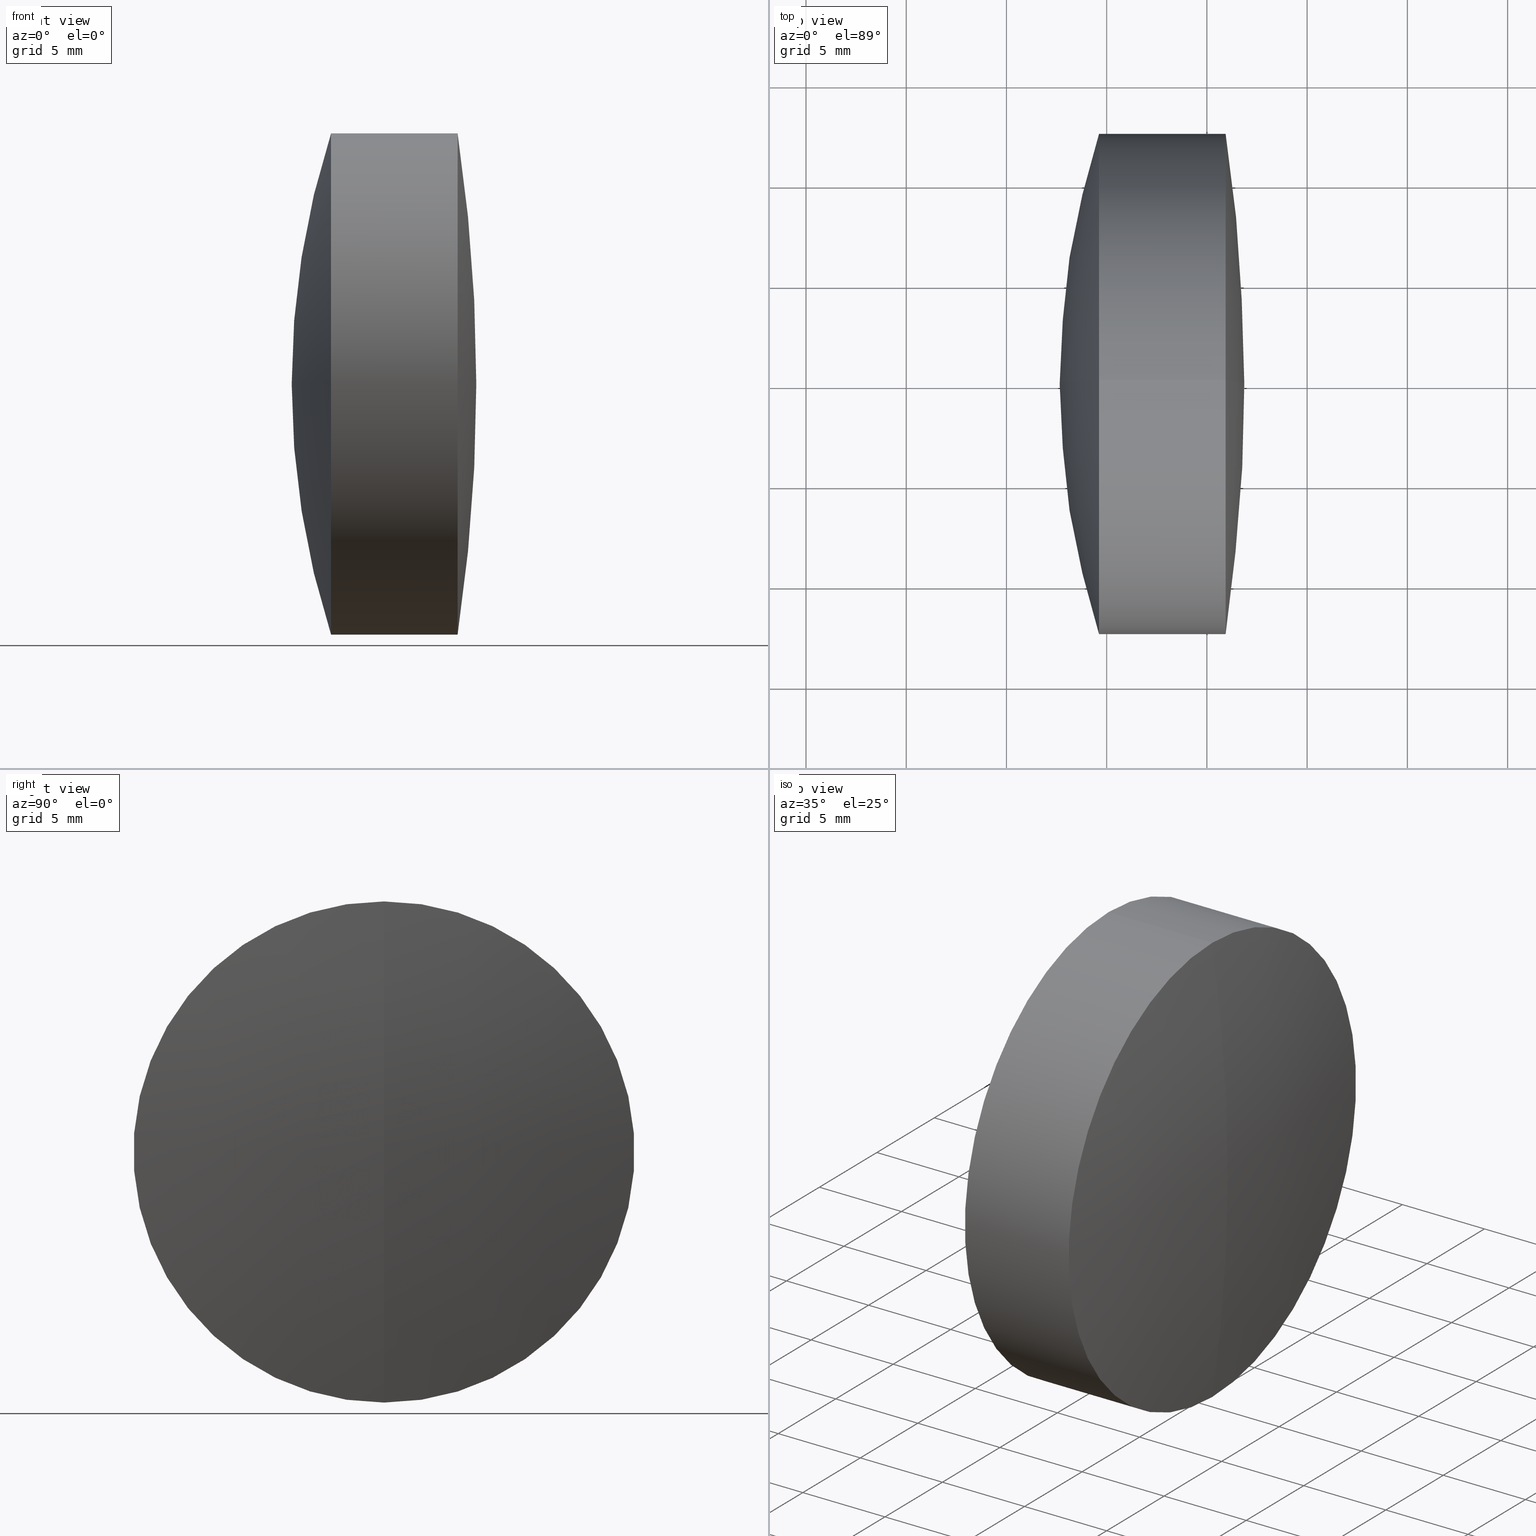
[diagram: canonical four-view strip — front | top / right | iso, engineering-drawing reading convention]
A machine part, canonical four-view strip (front | top / right | iso — engineering-drawing reading convention). The complete STEP part file that produces these views, byte-faithful:
ISO-10303-21;
HEADER;
FILE_DESCRIPTION (( 'STEP AP214' ),
    '1' );
FILE_NAME ('145040.STEP',
    '2019-05-12T02:45:25',
    ( 'user' ),
    ( '΢���й�' ),
    'SwSTEP 2.0',
    'SolidWorks 2016',
    '' );
FILE_SCHEMA (( 'AUTOMOTIVE_DESIGN' ));
ENDSEC;

DATA;
#1 = EDGE_CURVE ( 'NONE', #179, #344, #78, .T. ) ;
#2 = CARTESIAN_POINT ( 'NONE',  ( -37.44033102642524800, 0.0000000000000000000, 0.0000000000000000000 ) ) ;
#3 = ORIENTED_EDGE ( 'NONE', *, *, #323, .F. ) ;
#4 = ORIENTED_EDGE ( 'NONE', *, *, #282, .T. ) ;
#5 = DIRECTION ( 'NONE',  ( 0.0000000000000000000, 0.0000000000000000000, -1.000000000000000000 ) ) ;
#6 = CARTESIAN_POINT ( 'NONE',  ( 41.56290633338549200, 1.530808498934191500E-015, -12.50000000000000000 ) ) ;
#7 = CARTESIAN_POINT ( 'NONE',  ( 45.93383545216690300, 0.0000000000000000000, 0.0000000000000000000 ) ) ;
#8 = AXIS2_PLACEMENT_3D ( 'NONE', #219, #66, #242 ) ;
#9 = DIRECTION ( 'NONE',  ( 0.0000000000000000000, 0.0000000000000000000, 1.000000000000000000 ) ) ;
#10 = DIRECTION ( 'NONE',  ( -0.0000000000000000000, 1.000000000000000000, 1.224646799147353200E-016 ) ) ;
#11 = AXIS2_PLACEMENT_3D ( 'NONE', #87, #14, #38 ) ;
#12 =( NAMED_UNIT ( * ) PLANE_ANGLE_UNIT ( ) SI_UNIT ( $, .RADIAN. ) );
#13 = DIRECTION ( 'NONE',  ( 0.0000000000000000000, -1.000000000000000000, 0.0000000000000000000 ) ) ;
#14 = DIRECTION ( 'NONE',  ( 0.0000000000000000000, 1.000000000000000000, -0.0000000000000000000 ) ) ;
#15 = ORIENTED_EDGE ( 'NONE', *, *, #226, .T. ) ;
#16 = FACE_OUTER_BOUND ( 'NONE', #302, .T. ) ;
#17 = LINE ( 'NONE', #49, #267 ) ;
#18 = ORIENTED_EDGE ( 'NONE', *, *, #72, .T. ) ;
#19 = EDGE_CURVE ( 'NONE', #178, #318, #17, .T. ) ;
#20 = ADVANCED_FACE ( 'NONE', ( #97 ), #197, .T. ) ;
#21 = AXIS2_PLACEMENT_3D ( 'NONE', #67, #122, #124 ) ;
#22 = ORIENTED_EDGE ( 'NONE', *, *, #151, .F. ) ;
#23 = UNCERTAINTY_MEASURE_WITH_UNIT (LENGTH_MEASURE( 1.000000000000000100E-005 ), #169, 'distance_accuracy_value', 'NONE');
#24 = FACE_OUTER_BOUND ( 'NONE', #77, .T. ) ;
#25 = CARTESIAN_POINT ( 'NONE',  ( 14.87966897357473400, 0.0000000000000000000, 1.355252715606880500E-017 ) ) ;
#26 = AXIS2_PLACEMENT_3D ( 'NONE', #196, #321, #166 ) ;
#27 = DIRECTION ( 'NONE',  ( -1.000000000000000000, -0.0000000000000000000, -0.0000000000000000000 ) ) ;
#28 = DIRECTION ( 'NONE',  ( 0.0000000000000000000, 0.0000000000000000000, 1.000000000000000000 ) ) ;
#29 = CYLINDRICAL_SURFACE ( 'NONE', #39, 12.50000000000000000 ) ;
#30 = DIRECTION ( 'NONE',  ( 0.0000000000000000000, 0.0000000000000000000, 1.000000000000000000 ) ) ;
#31 = VERTEX_POINT ( 'NONE', #159 ) ;
#32 = ORIENTED_EDGE ( 'NONE', *, *, #75, .T. ) ;
#33 = DIRECTION ( 'NONE',  ( -1.000000000000000000, -0.0000000000000000000, -0.0000000000000000000 ) ) ;
#34 = FILL_AREA_STYLE ('',( #90 ) ) ;
#35 =( NAMED_UNIT ( * ) PLANE_ANGLE_UNIT ( ) SI_UNIT ( $, .RADIAN. ) );
#36 = CARTESIAN_POINT ( 'NONE',  ( 44.34566897357473900, 0.0000000000000000000, 1.817824656339864800E-015 ) ) ;
#37 = CLOSED_SHELL ( 'NONE', ( #250, #20, #319, #313, #340, #165 ) ) ;
#38 = DIRECTION ( 'NONE',  ( 0.0000000000000000000, 0.0000000000000000000, 1.000000000000000000 ) ) ;
#39 = AXIS2_PLACEMENT_3D ( 'NONE', #174, #137, #144 ) ;
#40 = CIRCLE ( 'NONE', #92, 29.46600000000000500 ) ;
#41 = ADVANCED_FACE ( 'NONE', ( #247 ), #221, .T. ) ;
#42 = MECHANICAL_DESIGN_GEOMETRIC_PRESENTATION_REPRESENTATION (  '', ( #211 ), #279 ) ;
#43 = ORIENTED_EDGE ( 'NONE', *, *, #129, .F. ) ;
#44 = EDGE_LOOP ( 'NONE', ( #254, #155, #100 ) ) ;
#45 = SPHERICAL_SURFACE ( 'NONE', #46, 29.46600000000000800 ) ;
#46 = AXIS2_PLACEMENT_3D ( 'NONE', #258, #62, #167 ) ;
#47 = ORIENTED_EDGE ( 'NONE', *, *, #101, .F. ) ;
#48 = DIRECTION ( 'NONE',  ( -1.000000000000000000, -0.0000000000000000000, -0.0000000000000000000 ) ) ;
#49 = CARTESIAN_POINT ( 'NONE',  ( -0.5519199926577972300, 1.530808498934191900E-015, -12.50000000000000400 ) ) ;
#50 = DIRECTION ( 'NONE',  ( 0.0000000000000000000, -1.224646799147353200E-016, 1.000000000000000000 ) ) ;
#51 = CARTESIAN_POINT ( 'NONE',  ( -0.5519199926577972300, 0.0000000000000000000, 0.0000000000000000000 ) ) ;
#52 = AXIS2_PLACEMENT_3D ( 'NONE', #347, #186, #28 ) ;
#53 = DIRECTION ( 'NONE',  ( 0.0000000000000000000, -1.000000000000000000, 0.0000000000000000000 ) ) ;
#54 = PRODUCT_RELATED_PRODUCT_CATEGORY ( 'part', '', ( #76 ) ) ;
#55 = ORIENTED_EDGE ( 'NONE', *, *, #236, .T. ) ;
#56 = CARTESIAN_POINT ( 'NONE',  ( 41.56290633338548400, 0.0000000000000000000, 0.0000000000000000000 ) ) ;
#57 = CIRCLE ( 'NONE', #259, 29.46600000000000800 ) ;
#58 = AXIS2_PLACEMENT_3D ( 'NONE', #229, #48, #206 ) ;
#59 = CARTESIAN_POINT ( 'NONE',  ( 41.56290633338549200, 0.0000000000000000000, 12.50000000000000000 ) ) ;
#60 = EDGE_LOOP ( 'NONE', ( #173, #277, #228, #3 ) ) ;
#61 = CARTESIAN_POINT ( 'NONE',  ( -0.5519199926577972300, 0.0000000000000000000, 12.50000000000000400 ) ) ;
#62 = DIRECTION ( 'NONE',  ( 0.0000000000000000000, 1.000000000000000000, 0.0000000000000000000 ) ) ;
#63 =( NAMED_UNIT ( * ) SI_UNIT ( $, .STERADIAN. ) SOLID_ANGLE_UNIT ( ) );
#64 = SURFACE_STYLE_USAGE ( .BOTH. , #217 ) ;
#65 = AXIS2_PLACEMENT_3D ( 'NONE', #324, #163, #9 ) ;
#66 = DIRECTION ( 'NONE',  ( 0.0000000000000000000, 0.0000000000000000000, 1.000000000000000000 ) ) ;
#67 = CARTESIAN_POINT ( 'NONE',  ( 41.56290633338549200, 0.0000000000000000000, 0.0000000000000000000 ) ) ;
#68 = EDGE_CURVE ( 'NONE', #182, #308, #69, .T. ) ;
#69 = CIRCLE ( 'NONE', #329, 29.46600000000000500 ) ;
#70 = EDGE_CURVE ( 'NONE', #224, #138, #346, .T. ) ;
#71 = ORIENTED_EDGE ( 'NONE', *, *, #68, .F. ) ;
#72 = EDGE_CURVE ( 'NONE', #344, #224, #256, .T. ) ;
#73 = LINE ( 'NONE', #61, #331 ) ;
#74 = AXIS2_PLACEMENT_3D ( 'NONE', #106, #257, #50 ) ;
#75 = EDGE_CURVE ( 'NONE', #318, #308, #330, .T. ) ;
#76 = PRODUCT ( '145040', '145040', '', ( #94 ) ) ;
#77 = EDGE_LOOP ( 'NONE', ( #145, #237, #95, #303 ) ) ;
#78 = LINE ( 'NONE', #230, #320 ) ;
#79 = FACE_OUTER_BOUND ( 'NONE', #311, .T. ) ;
#80 = FACE_OUTER_BOUND ( 'NONE', #333, .T. ) ;
#81 = FILL_AREA_STYLE_COLOUR ( '', #315 ) ;
#82 = DIRECTION ( 'NONE',  ( -1.000000000000000000, -0.0000000000000000000, -0.0000000000000000000 ) ) ;
#83 = DIRECTION ( 'NONE',  ( 0.0000000000000000000, 0.0000000000000000000, 1.000000000000000000 ) ) ;
#84 = ADVANCED_BREP_SHAPE_REPRESENTATION ( '145040', ( #149, #125, #8 ), #342 ) ;
#85 = DIRECTION ( 'NONE',  ( 0.0000000000000000000, 0.0000000000000000000, -1.000000000000000000 ) ) ;
#86 = FACE_OUTER_BOUND ( 'NONE', #275, .T. ) ;
#87 = CARTESIAN_POINT ( 'NONE',  ( 78.43766897357473100, 0.0000000000000000000, 9.088469244024832500E-017 ) ) ;
#88 = DIRECTION ( 'NONE',  ( -1.000000000000000000, -0.0000000000000000000, -0.0000000000000000000 ) ) ;
#89 =( NAMED_UNIT ( * ) SI_UNIT ( $, .STERADIAN. ) SOLID_ANGLE_UNIT ( ) );
#90 = FILL_AREA_STYLE_COLOUR ( '', #162 ) ;
#91 = APPLICATION_PROTOCOL_DEFINITION ( 'draft international standard', 'automotive_design', 1998, #119 ) ;
#92 = AXIS2_PLACEMENT_3D ( 'NONE', #266, #118, #239 ) ;
#93 = FILL_AREA_STYLE ('',( #81 ) ) ;
#94 = PRODUCT_CONTEXT ( 'NONE', #119, 'mechanical' ) ;
#95 = ORIENTED_EDGE ( 'NONE', *, *, #252, .F. ) ;
#96 = ORIENTED_EDGE ( 'NONE', *, *, #132, .T. ) ;
#97 = FACE_OUTER_BOUND ( 'NONE', #60, .T. ) ;
#98 = FACE_OUTER_BOUND ( 'NONE', #309, .T. ) ;
#99 = EDGE_CURVE ( 'NONE', #283, #179, #123, .T. ) ;
#100 = ORIENTED_EDGE ( 'NONE', *, *, #220, .T. ) ;
#101 = EDGE_CURVE ( 'NONE', #179, #184, #180, .T. ) ;
#102 = DIRECTION ( 'NONE',  ( 0.0000000000000000000, 1.224646799147353200E-016, -1.000000000000000000 ) ) ;
#103 = CYLINDRICAL_SURFACE ( 'NONE', #110, 12.50000000000000400 ) ;
#104 = DIRECTION ( 'NONE',  ( 0.0000000000000000000, 0.0000000000000000000, -1.000000000000000000 ) ) ;
#105 = CARTESIAN_POINT ( 'NONE',  ( 78.43766897357473100, 0.0000000000000000000, 9.088469244024832500E-017 ) ) ;
#106 = CARTESIAN_POINT ( 'NONE',  ( 14.87966897357473400, 0.0000000000000000000, 1.355252715606880500E-017 ) ) ;
#107 = AXIS2_PLACEMENT_3D ( 'NONE', #109, #261, #83 ) ;
#108 = PRESENTATION_STYLE_ASSIGNMENT (( #64 ) ) ;
#109 = CARTESIAN_POINT ( 'NONE',  ( 39.61858186426729100, 0.0000000000000000000, 0.0000000000000000000 ) ) ;
#110 = AXIS2_PLACEMENT_3D ( 'NONE', #115, #292, #192 ) ;
#111 = ORIENTED_EDGE ( 'NONE', *, *, #220, .F. ) ;
#112 = VERTEX_POINT ( 'NONE', #209 ) ;
#113 = DIRECTION ( 'NONE',  ( 0.0000000000000000000, 0.0000000000000000000, 1.000000000000000000 ) ) ;
#114 = DIRECTION ( 'NONE',  ( 0.0000000000000000000, 1.000000000000000000, 0.0000000000000000000 ) ) ;
#115 = CARTESIAN_POINT ( 'NONE',  ( -0.5519199926577972300, 0.0000000000000000000, 0.0000000000000000000 ) ) ;
#116 = DIRECTION ( 'NONE',  ( -1.000000000000000000, -0.0000000000000000000, -0.0000000000000000000 ) ) ;
#117 = SHAPE_DEFINITION_REPRESENTATION ( #205, #84 ) ;
#118 = DIRECTION ( 'NONE',  ( -0.0000000000000000000, 1.000000000000000000, 1.224646799147353200E-016 ) ) ;
#119 = APPLICATION_CONTEXT ( 'automotive_design' ) ;
#120 = DIRECTION ( 'NONE',  ( -1.000000000000000000, -0.0000000000000000000, -0.0000000000000000000 ) ) ;
#121 = APPLICATION_PROTOCOL_DEFINITION ( 'draft international standard', 'automotive_design', 1998, #270 ) ;
#122 = DIRECTION ( 'NONE',  ( -1.000000000000000000, -0.0000000000000000000, -0.0000000000000000000 ) ) ;
#123 = CIRCLE ( 'NONE', #74, 29.46600000000000800 ) ;
#124 = DIRECTION ( 'NONE',  ( 0.0000000000000000000, 0.0000000000000000000, 1.000000000000000000 ) ) ;
#125 = MANIFOLD_SOLID_BREP ( '��ת3', #37 ) ;
#126 = ORIENTED_EDGE ( 'NONE', *, *, #68, .T. ) ;
#127 = CIRCLE ( 'NONE', #245, 12.49999999999999800 ) ;
#128 = EDGE_LOOP ( 'NONE', ( #160, #15, #22 ) ) ;
#129 = EDGE_CURVE ( 'NONE', #182, #318, #40, .T. ) ;
#130 = SPHERICAL_SURFACE ( 'NONE', #65, 29.46600000000000500 ) ;
#131 = ORIENTED_EDGE ( 'NONE', *, *, #19, .F. ) ;
#132 = EDGE_CURVE ( 'NONE', #112, #178, #153, .T. ) ;
#133 = CIRCLE ( 'NONE', #11, 40.78199999999999600 ) ;
#134 = CARTESIAN_POINT ( 'NONE',  ( 78.43766897357473100, 0.0000000000000000000, 9.088469244024832500E-017 ) ) ;
#135 = AXIS2_PLACEMENT_3D ( 'NONE', #198, #116, #274 ) ;
#136 = PRESENTATION_STYLE_ASSIGNMENT (( #291 ) ) ;
#137 = DIRECTION ( 'NONE',  ( -1.000000000000000000, -0.0000000000000000000, -0.0000000000000000000 ) ) ;
#138 = VERTEX_POINT ( 'NONE', #233 ) ;
#139 = CIRCLE ( 'NONE', #21, 12.50000000000000000 ) ;
#140 =( LENGTH_UNIT ( ) NAMED_UNIT ( * ) SI_UNIT ( .MILLI., .METRE. ) );
#141 = FILL_AREA_STYLE_COLOUR ( '', #268 ) ;
#142 = SURFACE_SIDE_STYLE ('',( #314 ) ) ;
#143 = DIRECTION ( 'NONE',  ( 0.0000000000000000000, 0.0000000000000000000, 1.000000000000000000 ) ) ;
#144 = DIRECTION ( 'NONE',  ( 0.0000000000000000000, 0.0000000000000000000, 1.000000000000000000 ) ) ;
#145 = ORIENTED_EDGE ( 'NONE', *, *, #199, .T. ) ;
#146 = ORIENTED_EDGE ( 'NONE', *, *, #1, .F. ) ;
#147 = PRODUCT_DEFINITION_FORMATION_WITH_SPECIFIED_SOURCE ( '�κ�', '', #76, .NOT_KNOWN. ) ;
#148 = ORIENTED_EDGE ( 'NONE', *, *, #323, .T. ) ;
#149 = MANIFOLD_SOLID_BREP ( '��ת1', #150 ) ;
#150 = CLOSED_SHELL ( 'NONE', ( #157, #260, #285, #41, #246, #278 ) ) ;
#151 = EDGE_CURVE ( 'NONE', #178, #31, #127, .T. ) ;
#152 = CIRCLE ( 'NONE', #107, 12.50000000000000000 ) ;
#153 = CIRCLE ( 'NONE', #222, 84.30599999999999700 ) ;
#154 = PRESENTATION_STYLE_ASSIGNMENT (( #327 ) ) ;
#155 = ORIENTED_EDGE ( 'NONE', *, *, #252, .T. ) ;
#156 = ORIENTED_EDGE ( 'NONE', *, *, #210, .F. ) ;
#157 = ADVANCED_FACE ( 'NONE', ( #190 ), #45, .T. ) ;
#158 = AXIS2_PLACEMENT_3D ( 'NONE', #2, #188, #143 ) ;
#159 = CARTESIAN_POINT ( 'NONE',  ( 45.93383545216690300, 0.0000000000000000000, 12.49999999999999800 ) ) ;
#160 = ORIENTED_EDGE ( 'NONE', *, *, #132, .F. ) ;
#161 = PRESENTATION_LAYER_ASSIGNMENT (  '', '', ( #181 ) ) ;
#162 = COLOUR_RGB ( '',1.000000000000000000, 1.000000000000000000, 1.000000000000000000 ) ;
#163 = DIRECTION ( 'NONE',  ( 0.0000000000000000000, 1.000000000000000000, 0.0000000000000000000 ) ) ;
#164 = CARTESIAN_POINT ( 'NONE',  ( 45.93383545216690300, 1.530808498934191700E-015, -12.49999999999999800 ) ) ;
#165 = ADVANCED_FACE ( 'NONE', ( #251 ), #335, .T. ) ;
#166 = DIRECTION ( 'NONE',  ( 0.0000000000000000000, 0.0000000000000000000, 1.000000000000000000 ) ) ;
#167 = DIRECTION ( 'NONE',  ( 0.0000000000000000000, 0.0000000000000000000, 1.000000000000000000 ) ) ;
#168 = ORIENTED_EDGE ( 'NONE', *, *, #70, .T. ) ;
#169 =( LENGTH_UNIT ( ) NAMED_UNIT ( * ) SI_UNIT ( .MILLI., .METRE. ) );
#170 = SURFACE_SIDE_STYLE ('',( #300 ) ) ;
#171 =( NAMED_UNIT ( * ) SI_UNIT ( $, .STERADIAN. ) SOLID_ANGLE_UNIT ( ) );
#172 =( LENGTH_UNIT ( ) NAMED_UNIT ( * ) SI_UNIT ( .MILLI., .METRE. ) );
#173 = ORIENTED_EDGE ( 'NONE', *, *, #210, .T. ) ;
#174 = CARTESIAN_POINT ( 'NONE',  ( -9.702612178336682500, 0.0000000000000000000, 0.0000000000000000000 ) ) ;
#175 = DIRECTION ( 'NONE',  ( -1.000000000000000000, -0.0000000000000000000, -0.0000000000000000000 ) ) ;
#176 = SPHERICAL_SURFACE ( 'NONE', #26, 29.46600000000000800 ) ;
#177 = ORIENTED_EDGE ( 'NONE', *, *, #199, .F. ) ;
#178 = VERTEX_POINT ( 'NONE', #164 ) ;
#179 = VERTEX_POINT ( 'NONE', #6 ) ;
#180 = CIRCLE ( 'NONE', #341, 12.50000000000000000 ) ;
#181 = STYLED_ITEM ( 'NONE', ( #154 ), #84 ) ;
#182 = VERTEX_POINT ( 'NONE', #36 ) ;
#183 = DIRECTION ( 'NONE',  ( 0.0000000000000000000, -1.000000000000000000, 0.0000000000000000000 ) ) ;
#184 = VERTEX_POINT ( 'NONE', #59 ) ;
#185 = AXIS2_PLACEMENT_3D ( 'NONE', #322, #114, #325 ) ;
#186 = DIRECTION ( 'NONE',  ( -1.000000000000000000, -0.0000000000000000000, -0.0000000000000000000 ) ) ;
#187 = SURFACE_STYLE_FILL_AREA ( #93 ) ;
#188 = DIRECTION ( 'NONE',  ( 0.0000000000000000000, 1.000000000000000000, 0.0000000000000000000 ) ) ;
#189 = CARTESIAN_POINT ( 'NONE',  ( 78.43766897357473100, 0.0000000000000000000, 9.088469244024832500E-017 ) ) ;
#190 = FACE_OUTER_BOUND ( 'NONE', #289, .T. ) ;
#191 = FACE_OUTER_BOUND ( 'NONE', #334, .T. ) ;
#192 = DIRECTION ( 'NONE',  ( 0.0000000000000000000, 0.0000000000000000000, 1.000000000000000000 ) ) ;
#193 = DIRECTION ( 'NONE',  ( 0.0000000000000000000, -1.224646799147353000E-016, 1.000000000000000000 ) ) ;
#194 =( LENGTH_UNIT ( ) NAMED_UNIT ( * ) SI_UNIT ( .MILLI., .METRE. ) );
#195 =( NAMED_UNIT ( * ) SI_UNIT ( $, .STERADIAN. ) SOLID_ANGLE_UNIT ( ) );
#196 = CARTESIAN_POINT ( 'NONE',  ( 14.87966897357473400, 0.0000000000000000000, 1.355252715606880500E-017 ) ) ;
#197 = CYLINDRICAL_SURFACE ( 'NONE', #297, 12.50000000000000400 ) ;
#198 = CARTESIAN_POINT ( 'NONE',  ( -9.702612178336682500, 0.0000000000000000000, 0.0000000000000000000 ) ) ;
#199 = EDGE_CURVE ( 'NONE', #184, #179, #139, .T. ) ;
#200 = PRODUCT_DEFINITION_CONTEXT ( 'detailed design', #270, 'design' ) ;
#201 = ORIENTED_EDGE ( 'NONE', *, *, #99, .F. ) ;
#202 =( GEOMETRIC_REPRESENTATION_CONTEXT ( 3 ) GLOBAL_UNCERTAINTY_ASSIGNED_CONTEXT ( ( #231 ) ) GLOBAL_UNIT_ASSIGNED_CONTEXT ( ( #140, #213, #89 ) ) REPRESENTATION_CONTEXT ( 'NONE', 'WORKASPACE' ) );
#203 = SPHERICAL_SURFACE ( 'NONE', #158, 84.30599999999999700 ) ;
#204 = AXIS2_PLACEMENT_3D ( 'NONE', #105, #345, #104 ) ;
#205 = PRODUCT_DEFINITION_SHAPE ( 'NONE', 'NONE',  #307 ) ;
#206 = DIRECTION ( 'NONE',  ( 0.0000000000000000000, 0.0000000000000000000, 1.000000000000000000 ) ) ;
#207 = DIRECTION ( 'NONE',  ( -1.000000000000000000, -0.0000000000000000000, -0.0000000000000000000 ) ) ;
#208 = LINE ( 'NONE', #265, #304 ) ;
#209 = CARTESIAN_POINT ( 'NONE',  ( 46.86566897357474200, 0.0000000000000000000, 5.162253652445837200E-015 ) ) ;
#210 = EDGE_CURVE ( 'NONE', #31, #178, #262, .T. ) ;
#211 = STYLED_ITEM ( 'NONE', ( #108 ), #125 ) ;
#212 = DIRECTION ( 'NONE',  ( -1.000000000000000000, -0.0000000000000000000, -0.0000000000000000000 ) ) ;
#213 =( NAMED_UNIT ( * ) PLANE_ANGLE_UNIT ( ) SI_UNIT ( $, .RADIAN. ) );
#214 = DIRECTION ( 'NONE',  ( -1.000000000000000000, -0.0000000000000000000, -0.0000000000000000000 ) ) ;
#215 = CARTESIAN_POINT ( 'NONE',  ( -37.44033102642524800, 0.0000000000000000000, 0.0000000000000000000 ) ) ;
#216 =( NAMED_UNIT ( * ) PLANE_ANGLE_UNIT ( ) SI_UNIT ( $, .RADIAN. ) );
#217 = SURFACE_SIDE_STYLE ('',( #187 ) ) ;
#218 = ORIENTED_EDGE ( 'NONE', *, *, #151, .T. ) ;
#219 = CARTESIAN_POINT ( 'NONE',  ( 0.0000000000000000000, 0.0000000000000000000, 0.0000000000000000000 ) ) ;
#220 = EDGE_CURVE ( 'NONE', #344, #138, #133, .T. ) ;
#221 = SPHERICAL_SURFACE ( 'NONE', #204, 40.78199999999999600 ) ;
#222 = AXIS2_PLACEMENT_3D ( 'NONE', #215, #10, #193 ) ;
#223 = CIRCLE ( 'NONE', #253, 12.50000000000000900 ) ;
#224 = VERTEX_POINT ( 'NONE', #272 ) ;
#225 = ORIENTED_EDGE ( 'NONE', *, *, #72, .F. ) ;
#226 = EDGE_CURVE ( 'NONE', #112, #31, #276, .T. ) ;
#227 = AXIS2_PLACEMENT_3D ( 'NONE', #238, #234, #113 ) ;
#228 = ORIENTED_EDGE ( 'NONE', *, *, #282, .F. ) ;
#229 = CARTESIAN_POINT ( 'NONE',  ( 39.61858186426729100, 0.0000000000000000000, 0.0000000000000000000 ) ) ;
#230 = CARTESIAN_POINT ( 'NONE',  ( -9.702612178336682500, 1.530808498934191500E-015, -12.50000000000000000 ) ) ;
#231 = UNCERTAINTY_MEASURE_WITH_UNIT (LENGTH_MEASURE( 1.000000000000000100E-005 ), #140, 'distance_accuracy_value', 'NONE');
#232 = SPHERICAL_SURFACE ( 'NONE', #271, 40.78199999999999600 ) ;
#233 = CARTESIAN_POINT ( 'NONE',  ( 37.65566897357474100, 0.0000000000000000000, -2.406292595701119300E-015 ) ) ;
#234 = DIRECTION ( 'NONE',  ( 0.0000000000000000000, 1.000000000000000000, 0.0000000000000000000 ) ) ;
#235 = ORIENTED_EDGE ( 'NONE', *, *, #288, .T. ) ;
#236 = EDGE_CURVE ( 'NONE', #283, #184, #57, .T. ) ;
#237 = ORIENTED_EDGE ( 'NONE', *, *, #1, .T. ) ;
#238 = CARTESIAN_POINT ( 'NONE',  ( 14.87966897357473400, 0.0000000000000000000, 1.355252715606880500E-017 ) ) ;
#239 = DIRECTION ( 'NONE',  ( 0.0000000000000000000, -1.224646799147353500E-016, 1.000000000000000000 ) ) ;
#240 = PRESENTATION_LAYER_ASSIGNMENT (  '', '', ( #306 ) ) ;
#241 = DIRECTION ( 'NONE',  ( 0.0000000000000000000, 0.0000000000000000000, 1.000000000000000000 ) ) ;
#242 = DIRECTION ( 'NONE',  ( 1.000000000000000000, 0.0000000000000000000, 0.0000000000000000000 ) ) ;
#243 = CARTESIAN_POINT ( 'NONE',  ( -37.44033102642524800, 0.0000000000000000000, 0.0000000000000000000 ) ) ;
#244 = ORIENTED_EDGE ( 'NONE', *, *, #99, .T. ) ;
#245 = AXIS2_PLACEMENT_3D ( 'NONE', #7, #33, #263 ) ;
#246 = ADVANCED_FACE ( 'NONE', ( #16 ), #286, .T. ) ;
#247 = FACE_OUTER_BOUND ( 'NONE', #44, .T. ) ;
#248 = MECHANICAL_DESIGN_GEOMETRIC_PRESENTATION_REPRESENTATION (  '', ( #181 ), #284 ) ;
#249 = ORIENTED_EDGE ( 'NONE', *, *, #129, .T. ) ;
#250 = ADVANCED_FACE ( 'NONE', ( #86 ), #203, .T. ) ;
#251 = FACE_OUTER_BOUND ( 'NONE', #128, .T. ) ;
#252 = EDGE_CURVE ( 'NONE', #224, #344, #152, .T. ) ;
#253 = AXIS2_PLACEMENT_3D ( 'NONE', #56, #212, #30 ) ;
#254 = ORIENTED_EDGE ( 'NONE', *, *, #70, .F. ) ;
#255 = DIRECTION ( 'NONE',  ( 0.0000000000000000000, 0.0000000000000000000, 1.000000000000000000 ) ) ;
#256 = CIRCLE ( 'NONE', #58, 12.50000000000000000 ) ;
#257 = DIRECTION ( 'NONE',  ( -0.0000000000000000000, 1.000000000000000000, 1.224646799147353200E-016 ) ) ;
#258 = CARTESIAN_POINT ( 'NONE',  ( 14.87966897357473400, 0.0000000000000000000, 1.355252715606880500E-017 ) ) ;
#259 = AXIS2_PLACEMENT_3D ( 'NONE', #328, #13, #296 ) ;
#260 = ADVANCED_FACE ( 'NONE', ( #24 ), #29, .T. ) ;
#261 = DIRECTION ( 'NONE',  ( -1.000000000000000000, -0.0000000000000000000, -0.0000000000000000000 ) ) ;
#262 = CIRCLE ( 'NONE', #312, 12.49999999999999800 ) ;
#263 = DIRECTION ( 'NONE',  ( 0.0000000000000000000, 0.0000000000000000000, 1.000000000000000000 ) ) ;
#264 = MECHANICAL_DESIGN_GEOMETRIC_PRESENTATION_REPRESENTATION (  '', ( #306 ), #202 ) ;
#265 = CARTESIAN_POINT ( 'NONE',  ( -9.702612178336682500, 0.0000000000000000000, 12.50000000000000000 ) ) ;
#266 = CARTESIAN_POINT ( 'NONE',  ( 14.87966897357473400, 0.0000000000000000000, 1.355252715606880500E-017 ) ) ;
#267 = VECTOR ( 'NONE', #207, 1000.000000000000000 ) ;
#268 = COLOUR_RGB ( '',1.000000000000000000, 1.000000000000000000, 1.000000000000000000 ) ;
#269 = CARTESIAN_POINT ( 'NONE',  ( 41.56290633338549200, 0.0000000000000000000, 0.0000000000000000000 ) ) ;
#270 = APPLICATION_CONTEXT ( 'automotive_design' ) ;
#271 = AXIS2_PLACEMENT_3D ( 'NONE', #189, #287, #5 ) ;
#272 = CARTESIAN_POINT ( 'NONE',  ( 39.61858186426729100, -1.530808498934191700E-015, 12.50000000000000200 ) ) ;
#273 = ORIENTED_EDGE ( 'NONE', *, *, #101, .T. ) ;
#274 = DIRECTION ( 'NONE',  ( 0.0000000000000000000, 0.0000000000000000000, 1.000000000000000000 ) ) ;
#275 = EDGE_LOOP ( 'NONE', ( #305, #96, #156 ) ) ;
#276 = CIRCLE ( 'NONE', #293, 84.30599999999999700 ) ;
#277 = ORIENTED_EDGE ( 'NONE', *, *, #19, .T. ) ;
#278 = ADVANCED_FACE ( 'NONE', ( #98 ), #176, .T. ) ;
#279 =( GEOMETRIC_REPRESENTATION_CONTEXT ( 3 ) GLOBAL_UNCERTAINTY_ASSIGNED_CONTEXT ( ( #337 ) ) GLOBAL_UNIT_ASSIGNED_CONTEXT ( ( #194, #35, #171 ) ) REPRESENTATION_CONTEXT ( 'NONE', 'WORKASPACE' ) );
#280 = ORIENTED_EDGE ( 'NONE', *, *, #236, .F. ) ;
#281 = DIRECTION ( 'NONE',  ( 0.0000000000000000000, -1.000000000000000000, -1.224646799147353200E-016 ) ) ;
#282 = EDGE_CURVE ( 'NONE', #308, #318, #223, .T. ) ;
#283 = VERTEX_POINT ( 'NONE', #316 ) ;
#284 =( GEOMETRIC_REPRESENTATION_CONTEXT ( 3 ) GLOBAL_UNCERTAINTY_ASSIGNED_CONTEXT ( ( #298 ) ) GLOBAL_UNIT_ASSIGNED_CONTEXT ( ( #172, #12, #195 ) ) REPRESENTATION_CONTEXT ( 'NONE', 'WORKASPACE' ) );
#285 = ADVANCED_FACE ( 'NONE', ( #79 ), #232, .T. ) ;
#286 = CYLINDRICAL_SURFACE ( 'NONE', #135, 12.50000000000000000 ) ;
#287 = DIRECTION ( 'NONE',  ( -0.0000000000000000000, -1.000000000000000000, -0.0000000000000000000 ) ) ;
#288 = EDGE_CURVE ( 'NONE', #184, #224, #208, .T. ) ;
#289 = EDGE_LOOP ( 'NONE', ( #280, #244, #177 ) ) ;
#290 = CARTESIAN_POINT ( 'NONE',  ( 41.56290633338548400, 0.0000000000000000000, 12.50000000000000900 ) ) ;
#291 = SURFACE_STYLE_USAGE ( .BOTH. , #170 ) ;
#292 = DIRECTION ( 'NONE',  ( -1.000000000000000000, -0.0000000000000000000, -0.0000000000000000000 ) ) ;
#293 = AXIS2_PLACEMENT_3D ( 'NONE', #243, #53, #85 ) ;
#294 = EDGE_LOOP ( 'NONE', ( #43, #126, #4 ) ) ;
#295 = FILL_AREA_STYLE ('',( #141 ) ) ;
#296 = DIRECTION ( 'NONE',  ( 0.0000000000000000000, 0.0000000000000000000, -1.000000000000000000 ) ) ;
#297 = AXIS2_PLACEMENT_3D ( 'NONE', #51, #27, #255 ) ;
#298 = UNCERTAINTY_MEASURE_WITH_UNIT (LENGTH_MEASURE( 1.000000000000000100E-005 ), #172, 'distance_accuracy_value', 'NONE');
#299 = CARTESIAN_POINT ( 'NONE',  ( 45.93383545216690300, 0.0000000000000000000, 0.0000000000000000000 ) ) ;
#300 = SURFACE_STYLE_FILL_AREA ( #34 ) ;
#301 = AXIS2_PLACEMENT_3D ( 'NONE', #134, #281, #102 ) ;
#302 = EDGE_LOOP ( 'NONE', ( #146, #273, #235, #225 ) ) ;
#303 = ORIENTED_EDGE ( 'NONE', *, *, #288, .F. ) ;
#304 = VECTOR ( 'NONE', #88, 1000.000000000000000 ) ;
#305 = ORIENTED_EDGE ( 'NONE', *, *, #226, .F. ) ;
#306 = STYLED_ITEM ( 'NONE', ( #136 ), #149 ) ;
#307 = PRODUCT_DEFINITION ( 'δ֪', '', #147, #200 ) ;
#308 = VERTEX_POINT ( 'NONE', #290 ) ;
#309 = EDGE_LOOP ( 'NONE', ( #201, #55, #47 ) ) ;
#310 = SPHERICAL_SURFACE ( 'NONE', #227, 29.46600000000000500 ) ;
#311 = EDGE_LOOP ( 'NONE', ( #18, #168, #111 ) ) ;
#312 = AXIS2_PLACEMENT_3D ( 'NONE', #299, #175, #332 ) ;
#313 = ADVANCED_FACE ( 'NONE', ( #336 ), #310, .F. ) ;
#314 = SURFACE_STYLE_FILL_AREA ( #295 ) ;
#315 = COLOUR_RGB ( '',1.000000000000000000, 1.000000000000000000, 1.000000000000000000 ) ;
#316 = CARTESIAN_POINT ( 'NONE',  ( 44.34566897357473900, 0.0000000000000000000, 1.817824656339864800E-015 ) ) ;
#317 = CARTESIAN_POINT ( 'NONE',  ( 41.56290633338548400, 1.530808498934192700E-015, -12.50000000000000900 ) ) ;
#318 = VERTEX_POINT ( 'NONE', #317 ) ;
#319 = ADVANCED_FACE ( 'NONE', ( #80 ), #130, .F. ) ;
#320 = VECTOR ( 'NONE', #82, 1000.000000000000000 ) ;
#321 = DIRECTION ( 'NONE',  ( 0.0000000000000000000, 1.000000000000000000, 0.0000000000000000000 ) ) ;
#322 = CARTESIAN_POINT ( 'NONE',  ( -37.44033102642524800, 0.0000000000000000000, 0.0000000000000000000 ) ) ;
#323 = EDGE_CURVE ( 'NONE', #31, #308, #73, .T. ) ;
#324 = CARTESIAN_POINT ( 'NONE',  ( 14.87966897357473400, 0.0000000000000000000, 1.355252715606880500E-017 ) ) ;
#325 = DIRECTION ( 'NONE',  ( 0.0000000000000000000, 0.0000000000000000000, 1.000000000000000000 ) ) ;
#326 = CARTESIAN_POINT ( 'NONE',  ( 39.61858186426729100, 0.0000000000000000000, -12.50000000000000200 ) ) ;
#327 = SURFACE_STYLE_USAGE ( .BOTH. , #142 ) ;
#328 = CARTESIAN_POINT ( 'NONE',  ( 14.87966897357473400, 0.0000000000000000000, 1.355252715606880500E-017 ) ) ;
#329 = AXIS2_PLACEMENT_3D ( 'NONE', #25, #183, #343 ) ;
#330 = CIRCLE ( 'NONE', #52, 12.50000000000000900 ) ;
#331 = VECTOR ( 'NONE', #214, 1000.000000000000000 ) ;
#332 = DIRECTION ( 'NONE',  ( 0.0000000000000000000, 0.0000000000000000000, 1.000000000000000000 ) ) ;
#333 = EDGE_LOOP ( 'NONE', ( #71, #249, #32 ) ) ;
#334 = EDGE_LOOP ( 'NONE', ( #131, #218, #148, #339 ) ) ;
#335 = SPHERICAL_SURFACE ( 'NONE', #185, 84.30599999999999700 ) ;
#336 = FACE_OUTER_BOUND ( 'NONE', #294, .T. ) ;
#337 = UNCERTAINTY_MEASURE_WITH_UNIT (LENGTH_MEASURE( 1.000000000000000100E-005 ), #194, 'distance_accuracy_value', 'NONE');
#338 = PRESENTATION_LAYER_ASSIGNMENT (  '', '', ( #211 ) ) ;
#339 = ORIENTED_EDGE ( 'NONE', *, *, #75, .F. ) ;
#340 = ADVANCED_FACE ( 'NONE', ( #191 ), #103, .T. ) ;
#341 = AXIS2_PLACEMENT_3D ( 'NONE', #269, #120, #241 ) ;
#342 =( GEOMETRIC_REPRESENTATION_CONTEXT ( 3 ) GLOBAL_UNCERTAINTY_ASSIGNED_CONTEXT ( ( #23 ) ) GLOBAL_UNIT_ASSIGNED_CONTEXT ( ( #169, #216, #63 ) ) REPRESENTATION_CONTEXT ( 'NONE', 'WORKASPACE' ) );
#343 = DIRECTION ( 'NONE',  ( 0.0000000000000000000, 0.0000000000000000000, -1.000000000000000000 ) ) ;
#344 = VERTEX_POINT ( 'NONE', #326 ) ;
#345 = DIRECTION ( 'NONE',  ( -0.0000000000000000000, -1.000000000000000000, -0.0000000000000000000 ) ) ;
#346 = CIRCLE ( 'NONE', #301, 40.78199999999999600 ) ;
#347 = CARTESIAN_POINT ( 'NONE',  ( 41.56290633338548400, 0.0000000000000000000, 0.0000000000000000000 ) ) ;
ENDSEC;
END-ISO-10303-21;
